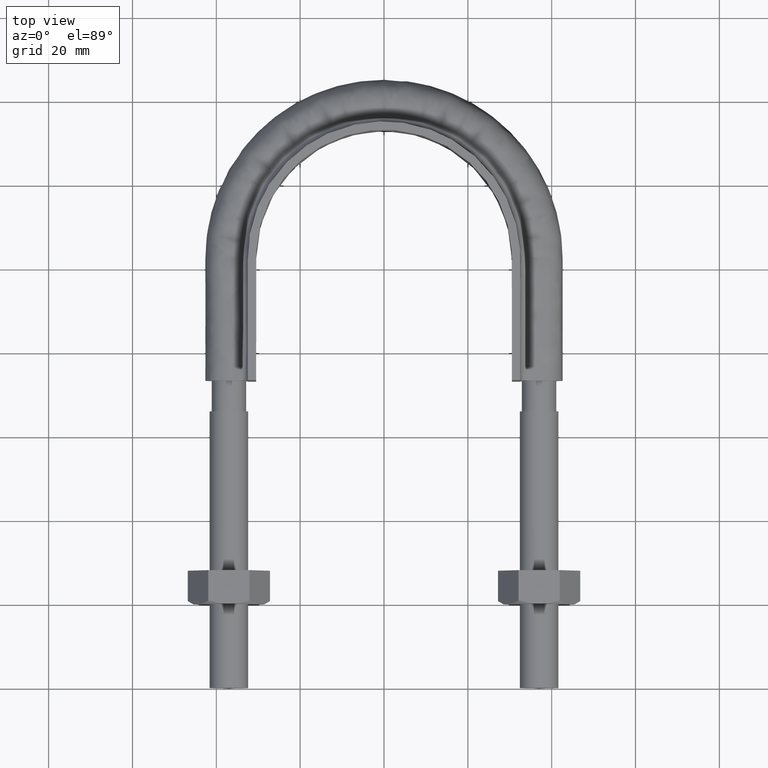
[diagram: clean part render]
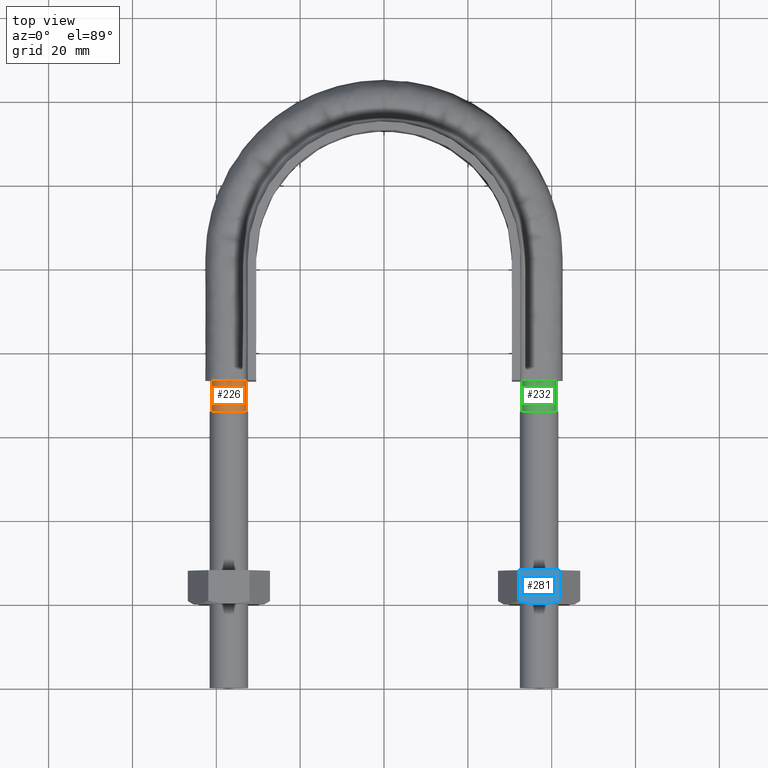
[diagram: same view with three faces highlighted in distinct colors, each labeled with its STEP entity id]
A machine part, top view with three faces highlighted in distinct colors.
Their STEP definitions:

[orange] entity #226 — the highlighted cylindrical surface (bore or boss wall) has radius 4.1 mm, axis along (0, 1, -0).
#226 = ADVANCED_FACE( '', ( #313, #314 ), #315, .T. );
#313 = FACE_OUTER_BOUND( '', #1161, .T. );
#314 = FACE_OUTER_BOUND( '', #1162, .T. );
#315 = CYLINDRICAL_SURFACE( '', #1163, 4.10000000000000 );
#1161 = EDGE_LOOP( '', ( #1523, #1524, #1525, #1526, #1527, #1528, #1529 ) );
#1162 = EDGE_LOOP( '', ( #1530 ) );
#1163 = AXIS2_PLACEMENT_3D( '', #1531, #1532, #1533 );
#1523 = ORIENTED_EDGE( '', *, *, #2017, .T. );
#1524 = ORIENTED_EDGE( '', *, *, #2018, .T. );
#1525 = ORIENTED_EDGE( '', *, *, #2019, .T. );
#1526 = ORIENTED_EDGE( '', *, *, #2020, .T. );
#1527 = ORIENTED_EDGE( '', *, *, #2021, .T. );
#1528 = ORIENTED_EDGE( '', *, *, #2022, .T. );
#1529 = ORIENTED_EDGE( '', *, *, #2023, .T. );
#1530 = ORIENTED_EDGE( '', *, *, #2024, .T. );
#1531 = CARTESIAN_POINT( '', ( -37.0000000000000, 73.3000000000000, -2.07570776972893E-015 ) );
#1532 = DIRECTION( '', ( 2.44921270764475E-016, 1.00000000000000, -6.12303176911189E-017 ) );
#1533 = DIRECTION( '', ( 1.00000000000000, -2.44921270764475E-016, 0.000000000000000 ) );
#2017 = EDGE_CURVE( '', #2179, #2180, #2181, .T. );
#2018 = EDGE_CURVE( '', #2180, #2182, #2183, .T. );
#2019 = EDGE_CURVE( '', #2182, #2184, #2185, .T. );
#2020 = EDGE_CURVE( '', #2184, #2186, #2187, .T. );
#2021 = EDGE_CURVE( '', #2186, #2188, #2189, .T. );
#2022 = EDGE_CURVE( '', #2188, #2190, #2191, .T. );
#2023 = EDGE_CURVE( '', #2190, #2179, #2192, .T. );
#2024 = EDGE_CURVE( '', #2193, #2193, #2194, .T. );
#2179 = VERTEX_POINT( '', #2634 );
#2180 = VERTEX_POINT( '', #2635 );
#2181 = CIRCLE( '', #2636, 4.10000000000000 );
#2182 = VERTEX_POINT( '', #2637 );
#2183 = CIRCLE( '', #2638, 4.10000000000000 );
#2184 = VERTEX_POINT( '', #2639 );
#2185 = CIRCLE( '', #2640, 4.10000000000000 );
#2186 = VERTEX_POINT( '', #2641 );
#2187 = CIRCLE( '', #2642, 4.10000000000000 );
#2188 = VERTEX_POINT( '', #2643 );
#2189 = CIRCLE( '', #2644, 4.10000000000000 );
#2190 = VERTEX_POINT( '', #2645 );
#2191 = CIRCLE( '', #2646, 4.10000000000000 );
#2192 = CIRCLE( '', #2647, 4.10000000000000 );
#2193 = VERTEX_POINT( '', #2648 );
#2194 = CIRCLE( '', #2649, 4.10000000000000 );
#2634 = CARTESIAN_POINT( '', ( -32.9000000000000, 73.3000000000001, 5.38378651292854E-014 ) );
#2635 = CARTESIAN_POINT( '', ( -34.4436918124004, 73.3000000000000, 3.20550907813581 ) );
#2636 = AXIS2_PLACEMENT_3D( '', #3064, #3065, #3066 );
#2637 = CARTESIAN_POINT( '', ( -37.9123358292393, 73.3000000000000, 3.99720443994127 ) );
#2638 = AXIS2_PLACEMENT_3D( '', #3067, #3068, #3069 );
#2639 = CARTESIAN_POINT( '', ( -40.6939723584001, 73.3000000000000, 1.77892333038163 ) );
#2640 = AXIS2_PLACEMENT_3D( '', #3070, #3071, #3072 );
#2641 = CARTESIAN_POINT( '', ( -40.6939723583999, 73.3000000000000, -1.77892333038198 ) );
#2642 = AXIS2_PLACEMENT_3D( '', #3073, #3074, #3075 );
#2643 = CARTESIAN_POINT( '', ( -37.9123358292208, 73.3000000000000, -3.99720443994549 ) );
#2644 = AXIS2_PLACEMENT_3D( '', #3076, #3077, #3078 );
#2645 = CARTESIAN_POINT( '', ( -34.4436918123793, 73.3000000000000, -3.20550907811902 ) );
#2646 = AXIS2_PLACEMENT_3D( '', #3079, #3080, #3081 );
#2647 = AXIS2_PLACEMENT_3D( '', #3082, #3083, #3084 );
#2648 = CARTESIAN_POINT( '', ( -32.9000000000000, 66.0000000000000, -1.62872645058376E-015 ) );
#2649 = AXIS2_PLACEMENT_3D( '', #3085, #3086, #3087 );
#3064 = CARTESIAN_POINT( '', ( -37.0000000000000, 73.3000000000000, -2.07570776972893E-015 ) );
#3065 = DIRECTION( '', ( -2.44921270764475E-016, -1.00000000000000, 6.12303176911189E-017 ) );
#3066 = DIRECTION( '', ( 1.00000000000000, -2.44921270764475E-016, 0.000000000000000 ) );
#3067 = CARTESIAN_POINT( '', ( -37.0000000000000, 73.3000000000000, -2.07570776972893E-015 ) );
#3068 = DIRECTION( '', ( -2.44921270764475E-016, -1.00000000000000, 6.12303176911189E-017 ) );
#3069 = DIRECTION( '', ( 1.00000000000000, -2.44921270764475E-016, 0.000000000000000 ) );
#3070 = CARTESIAN_POINT( '', ( -37.0000000000000, 73.3000000000000, -2.07570776972893E-015 ) );
#3071 = DIRECTION( '', ( -2.44921270764475E-016, -1.00000000000000, 6.12303176911189E-017 ) );
#3072 = DIRECTION( '', ( 1.00000000000000, -2.44921270764475E-016, 0.000000000000000 ) );
#3073 = CARTESIAN_POINT( '', ( -37.0000000000000, 73.3000000000000, -2.07570776972893E-015 ) );
#3074 = DIRECTION( '', ( -2.44921270764475E-016, -1.00000000000000, 6.12303176911189E-017 ) );
#3075 = DIRECTION( '', ( 1.00000000000000, -2.44921270764475E-016, 0.000000000000000 ) );
#3076 = CARTESIAN_POINT( '', ( -37.0000000000000, 73.3000000000000, -2.07570776972893E-015 ) );
#3077 = DIRECTION( '', ( -2.44921270764475E-016, -1.00000000000000, 6.12303176911189E-017 ) );
#3078 = DIRECTION( '', ( 1.00000000000000, -2.44921270764475E-016, 0.000000000000000 ) );
#3079 = CARTESIAN_POINT( '', ( -37.0000000000000, 73.3000000000000, -2.07570776972893E-015 ) );
#3080 = DIRECTION( '', ( -2.44921270764475E-016, -1.00000000000000, 6.12303176911189E-017 ) );
#3081 = DIRECTION( '', ( 1.00000000000000, -2.44921270764475E-016, 0.000000000000000 ) );
#3082 = CARTESIAN_POINT( '', ( -37.0000000000000, 73.3000000000000, -2.07570776972893E-015 ) );
#3083 = DIRECTION( '', ( -2.44921270764475E-016, -1.00000000000000, 6.12303176911189E-017 ) );
#3084 = DIRECTION( '', ( 1.00000000000000, -2.44921270764475E-016, 0.000000000000000 ) );
#3085 = CARTESIAN_POINT( '', ( -37.0000000000000, 66.0000000000000, -1.62872645058376E-015 ) );
#3086 = DIRECTION( '', ( 2.44921270764475E-016, 1.00000000000000, -6.12303176911189E-017 ) );
#3087 = DIRECTION( '', ( 1.00000000000000, -2.44921270764475E-016, 0.000000000000000 ) );

[blue] entity #281 — the highlighted planar face has unit normal (0, -0, -1).
#281 = ADVANCED_FACE( '', ( #436 ), #437, .F. );
#436 = FACE_OUTER_BOUND( '', #1433, .T. );
#437 = PLANE( '', #1434 );
#1433 = EDGE_LOOP( '', ( #1893, #1894, #1895, #1896, #1897 ) );
#1434 = AXIS2_PLACEMENT_3D( '', #1898, #1899, #1900 );
#1893 = ORIENTED_EDGE( '', *, *, #2133, .F. );
#1894 = ORIENTED_EDGE( '', *, *, #2124, .F. );
#1895 = ORIENTED_EDGE( '', *, *, #2134, .F. );
#1896 = ORIENTED_EDGE( '', *, *, #2135, .F. );
#1897 = ORIENTED_EDGE( '', *, *, #2136, .F. );
#1898 = CARTESIAN_POINT( '', ( 32.0925227118848, 27.9999999999964, 8.49999999999807 ) );
#1899 = DIRECTION( '', ( 3.92741394961149E-013, -6.12303176912151E-017, -1.00000000000000 ) );
#1900 = DIRECTION( '', ( 0.000000000000000, -1.00000000000000, 6.12303176912151E-017 ) );
#2124 = EDGE_CURVE( '', #2357, #2353, #2359, .T. );
#2133 = EDGE_CURVE( '', #2353, #2373, #2374, .T. );
#2134 = EDGE_CURVE( '', #2375, #2357, #2376, .F. );
#2135 = EDGE_CURVE( '', #2377, #2375, #2378, .T. );
#2136 = EDGE_CURVE( '', #2373, #2377, #2379, .T. );
#2353 = VERTEX_POINT( '', #2959 );
#2357 = VERTEX_POINT( '', #2968 );
#2359 = B_SPLINE_CURVE_WITH_KNOTS( '', 3, ( #2970, #2971, #2972, #2973, #2974, #2975 ), .UNSPECIFIED., .F., .F., ( 4, 2, 4 ), ( 4.22076438404016E-017, 0.00246745482903604, 0.00493490965807203 ), .UNSPECIFIED. );
#2373 = VERTEX_POINT( '', #3006 );
#2374 = B_SPLINE_CURVE_WITH_KNOTS( '', 3, ( #3007, #3008, #3009, #3010, #3011, #3012 ), .UNSPECIFIED., .F., .F., ( 4, 2, 4 ), ( 1.43048962453820E-017, 0.00246745482903608, 0.00493490965807214 ), .UNSPECIFIED. );
#2375 = VERTEX_POINT( '', #3013 );
#2376 = LINE( '', #3014, #3015 );
#2377 = VERTEX_POINT( '', #3016 );
#2378 = LINE( '', #3017, #3018 );
#2379 = LINE( '', #3019, #3020 );
#2959 = CARTESIAN_POINT( '', ( 36.9999999999967, 19.9999999999964, 8.50000000000000 ) );
#2968 = CARTESIAN_POINT( '', ( 41.8774993592995, 20.7505553499429, 8.50000000000191 ) );
#2970 = CARTESIAN_POINT( '', ( 41.8774993592995, 20.7505553499429, 8.50000000000191 ) );
#2971 = CARTESIAN_POINT( '', ( 41.0805717066739, 20.5215585493620, 8.50000000000160 ) );
#2972 = CARTESIAN_POINT( '', ( 40.2774431756595, 20.3328582843670, 8.50000000000129 ) );
#2973 = CARTESIAN_POINT( '', ( 38.6533062476823, 20.0716504305254, 8.50000000000065 ) );
#2974 = CARTESIAN_POINT( '', ( 37.8321659501874, 19.9999999999964, 8.50000000000033 ) );
#2975 = CARTESIAN_POINT( '', ( 36.9999999999967, 19.9999999999964, 8.50000000000000 ) );
#3006 = CARTESIAN_POINT( '', ( 32.1225006406938, 20.7505553499429, 8.49999999999808 ) );
#3007 = CARTESIAN_POINT( '', ( 36.9999999999967, 19.9999999999964, 8.50000000000000 ) );
#3008 = CARTESIAN_POINT( '', ( 36.1678340498060, 19.9999999999964, 8.49999999999967 ) );
#3009 = CARTESIAN_POINT( '', ( 35.3466937523110, 20.0716504305254, 8.49999999999935 ) );
#3010 = CARTESIAN_POINT( '', ( 33.7225568243338, 20.3328582843670, 8.49999999999871 ) );
#3011 = CARTESIAN_POINT( '', ( 32.9194282933194, 20.5215585493621, 8.49999999999840 ) );
#3012 = CARTESIAN_POINT( '', ( 32.1225006406938, 20.7505553499429, 8.49999999999808 ) );
#3013 = CARTESIAN_POINT( '', ( 41.8774993592995, 27.9999999999964, 8.50000000000191 ) );
#3014 = CARTESIAN_POINT( '', ( 41.8774993592995, 27.9999999999964, 8.50000000000191 ) );
#3015 = VECTOR( '', #3252, 1000.00000000000 );
#3016 = CARTESIAN_POINT( '', ( 32.1225006406938, 27.9999999999964, 8.49999999999808 ) );
#3017 = CARTESIAN_POINT( '', ( 32.0999999999967, 27.9999999999964, 8.49999999999807 ) );
#3018 = VECTOR( '', #3253, 1000.00000000000 );
#3019 = CARTESIAN_POINT( '', ( 32.1225006406938, 27.9999999999964, 8.49999999999808 ) );
#3020 = VECTOR( '', #3254, 1000.00000000000 );
#3252 = DIRECTION( '', ( 2.44921270764475E-016, 1.00000000000000, -6.12303176911192E-017 ) );
#3253 = DIRECTION( '', ( 1.00000000000000, -2.44921270764452E-016, 3.92741394961149E-013 ) );
#3254 = DIRECTION( '', ( 2.44921270764475E-016, 1.00000000000000, -6.12303176911192E-017 ) );

[green] entity #232 — the highlighted cylindrical surface (bore or boss wall) has radius 4.1 mm, axis along (0, 1, -0).
#232 = ADVANCED_FACE( '', ( #328, #329 ), #330, .T. );
#328 = FACE_OUTER_BOUND( '', #1325, .T. );
#329 = FACE_OUTER_BOUND( '', #1326, .T. );
#330 = CYLINDRICAL_SURFACE( '', #1327, 4.10000000000000 );
#1325 = EDGE_LOOP( '', ( #1568, #1569, #1570, #1571, #1572, #1573, #1574 ) );
#1326 = EDGE_LOOP( '', ( #1575 ) );
#1327 = AXIS2_PLACEMENT_3D( '', #1576, #1577, #1578 );
#1568 = ORIENTED_EDGE( '', *, *, #2043, .T. );
#1569 = ORIENTED_EDGE( '', *, *, #2042, .T. );
#1570 = ORIENTED_EDGE( '', *, *, #2044, .T. );
#1571 = ORIENTED_EDGE( '', *, *, #2045, .T. );
#1572 = ORIENTED_EDGE( '', *, *, #2046, .T. );
#1573 = ORIENTED_EDGE( '', *, *, #2025, .T. );
#1574 = ORIENTED_EDGE( '', *, *, #2047, .T. );
#1575 = ORIENTED_EDGE( '', *, *, #2048, .T. );
#1576 = CARTESIAN_POINT( '', ( 37.0000000000000, 73.3000000000000, -2.07570776972893E-015 ) );
#1577 = DIRECTION( '', ( 2.44921270764475E-016, 1.00000000000000, -6.12303176911189E-017 ) );
#1578 = DIRECTION( '', ( 1.00000000000000, -2.44921270764475E-016, 0.000000000000000 ) );
#2025 = EDGE_CURVE( '', #2195, #2196, #2197, .T. );
#2042 = EDGE_CURVE( '', #2213, #2211, #2221, .T. );
#2043 = EDGE_CURVE( '', #2215, #2213, #2222, .T. );
#2044 = EDGE_CURVE( '', #2211, #2210, #2223, .T. );
#2045 = EDGE_CURVE( '', #2210, #2218, #2224, .T. );
#2046 = EDGE_CURVE( '', #2218, #2195, #2225, .T. );
#2047 = EDGE_CURVE( '', #2196, #2215, #2226, .T. );
#2048 = EDGE_CURVE( '', #2227, #2227, #2228, .T. );
#2195 = VERTEX_POINT( '', #2650 );
#2196 = VERTEX_POINT( '', #2651 );
#2197 = CIRCLE( '', #2652, 4.10000000000000 );
#2210 = VERTEX_POINT( '', #2689 );
#2211 = VERTEX_POINT( '', #2690 );
#2213 = VERTEX_POINT( '', #2695 );
#2215 = VERTEX_POINT( '', #2700 );
#2218 = VERTEX_POINT( '', #2709 );
#2221 = CIRCLE( '', #2718, 4.10000000000000 );
#2222 = CIRCLE( '', #2719, 4.10000000000000 );
#2223 = CIRCLE( '', #2720, 4.10000000000000 );
#2224 = CIRCLE( '', #2721, 4.10000000000000 );
#2225 = CIRCLE( '', #2722, 4.10000000000000 );
#2226 = CIRCLE( '', #2723, 4.10000000000000 );
#2227 = VERTEX_POINT( '', #2724 );
#2228 = CIRCLE( '', #2725, 4.10000000000000 );
#2650 = CARTESIAN_POINT( '', ( 37.9123358292214, 73.3000000000001, -3.99720443994537 ) );
#2651 = CARTESIAN_POINT( '', ( 40.6939723584000, 73.3000000000001, -1.77892333038182 ) );
#2652 = AXIS2_PLACEMENT_3D( '', #3088, #3089, #3090 );
#2689 = CARTESIAN_POINT( '', ( 32.9000000000000, 73.3000000000000, 3.25958505856969E-013 ) );
#2690 = CARTESIAN_POINT( '', ( 34.4436918123789, 73.3000000000001, 3.20550907811872 ) );
#2695 = CARTESIAN_POINT( '', ( 37.9123358292209, 73.3000000000001, 3.99720443994547 ) );
#2700 = CARTESIAN_POINT( '', ( 40.6939723583998, 73.3000000000001, 1.77892333038233 ) );
#2709 = CARTESIAN_POINT( '', ( 34.4436918123815, 73.3000000000001, -3.20550907812077 ) );
#2718 = AXIS2_PLACEMENT_3D( '', #3097, #3098, #3099 );
#2719 = AXIS2_PLACEMENT_3D( '', #3100, #3101, #3102 );
#2720 = AXIS2_PLACEMENT_3D( '', #3103, #3104, #3105 );
#2721 = AXIS2_PLACEMENT_3D( '', #3106, #3107, #3108 );
#2722 = AXIS2_PLACEMENT_3D( '', #3109, #3110, #3111 );
#2723 = AXIS2_PLACEMENT_3D( '', #3112, #3113, #3114 );
#2724 = CARTESIAN_POINT( '', ( 41.1000000000000, 66.0000000000000, -1.62872645058376E-015 ) );
#2725 = AXIS2_PLACEMENT_3D( '', #3115, #3116, #3117 );
#3088 = CARTESIAN_POINT( '', ( 37.0000000000000, 73.3000000000000, -2.07570776972893E-015 ) );
#3089 = DIRECTION( '', ( -2.44921270764475E-016, -1.00000000000000, 6.12303176911189E-017 ) );
#3090 = DIRECTION( '', ( 1.00000000000000, -2.44921270764475E-016, 0.000000000000000 ) );
#3097 = CARTESIAN_POINT( '', ( 37.0000000000000, 73.3000000000000, -2.07570776972893E-015 ) );
#3098 = DIRECTION( '', ( -2.44921270764475E-016, -1.00000000000000, 6.12303176911189E-017 ) );
#3099 = DIRECTION( '', ( 1.00000000000000, -2.44921270764475E-016, 0.000000000000000 ) );
#3100 = CARTESIAN_POINT( '', ( 37.0000000000000, 73.3000000000000, -2.07570776972893E-015 ) );
#3101 = DIRECTION( '', ( -2.44921270764475E-016, -1.00000000000000, 6.12303176911189E-017 ) );
#3102 = DIRECTION( '', ( 1.00000000000000, -2.44921270764475E-016, 0.000000000000000 ) );
#3103 = CARTESIAN_POINT( '', ( 37.0000000000000, 73.3000000000000, -2.07570776972893E-015 ) );
#3104 = DIRECTION( '', ( -2.44921270764475E-016, -1.00000000000000, 6.12303176911189E-017 ) );
#3105 = DIRECTION( '', ( 1.00000000000000, -2.44921270764475E-016, 0.000000000000000 ) );
#3106 = CARTESIAN_POINT( '', ( 37.0000000000000, 73.3000000000000, -2.07570776972893E-015 ) );
#3107 = DIRECTION( '', ( -2.44921270764475E-016, -1.00000000000000, 6.12303176911189E-017 ) );
#3108 = DIRECTION( '', ( 1.00000000000000, -2.44921270764475E-016, 0.000000000000000 ) );
#3109 = CARTESIAN_POINT( '', ( 37.0000000000000, 73.3000000000000, -2.07570776972893E-015 ) );
#3110 = DIRECTION( '', ( -2.44921270764475E-016, -1.00000000000000, 6.12303176911189E-017 ) );
#3111 = DIRECTION( '', ( 1.00000000000000, -2.44921270764475E-016, 0.000000000000000 ) );
#3112 = CARTESIAN_POINT( '', ( 37.0000000000000, 73.3000000000000, -2.07570776972893E-015 ) );
#3113 = DIRECTION( '', ( -2.44921270764475E-016, -1.00000000000000, 6.12303176911189E-017 ) );
#3114 = DIRECTION( '', ( 1.00000000000000, -2.44921270764475E-016, 0.000000000000000 ) );
#3115 = CARTESIAN_POINT( '', ( 37.0000000000000, 66.0000000000000, -1.62872645058376E-015 ) );
#3116 = DIRECTION( '', ( 2.44921270764476E-016, 1.00000000000000, -6.12303176911189E-017 ) );
#3117 = DIRECTION( '', ( 1.00000000000000, -2.44921270764476E-016, 0.000000000000000 ) );